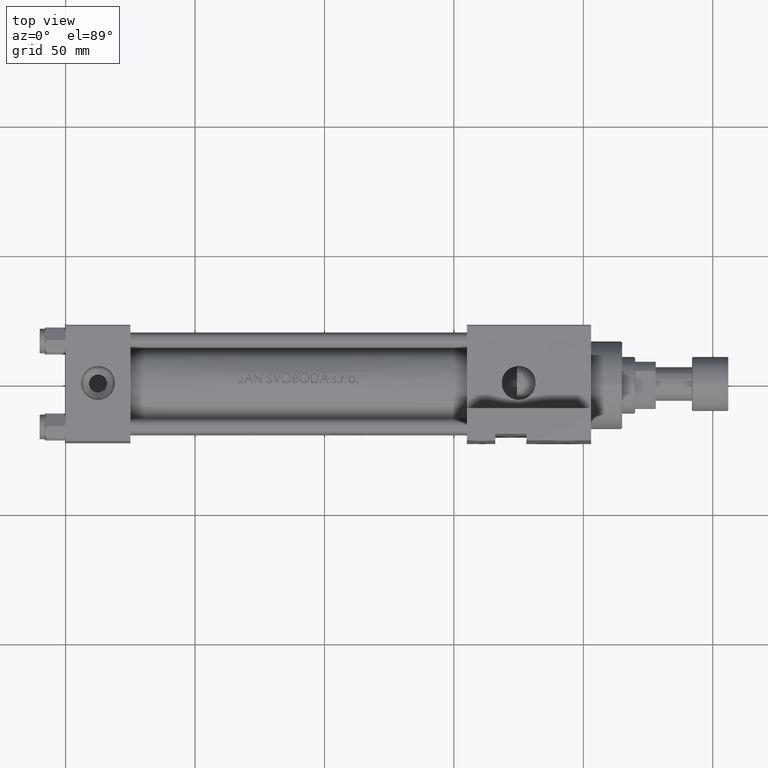
[diagram: clean part render]
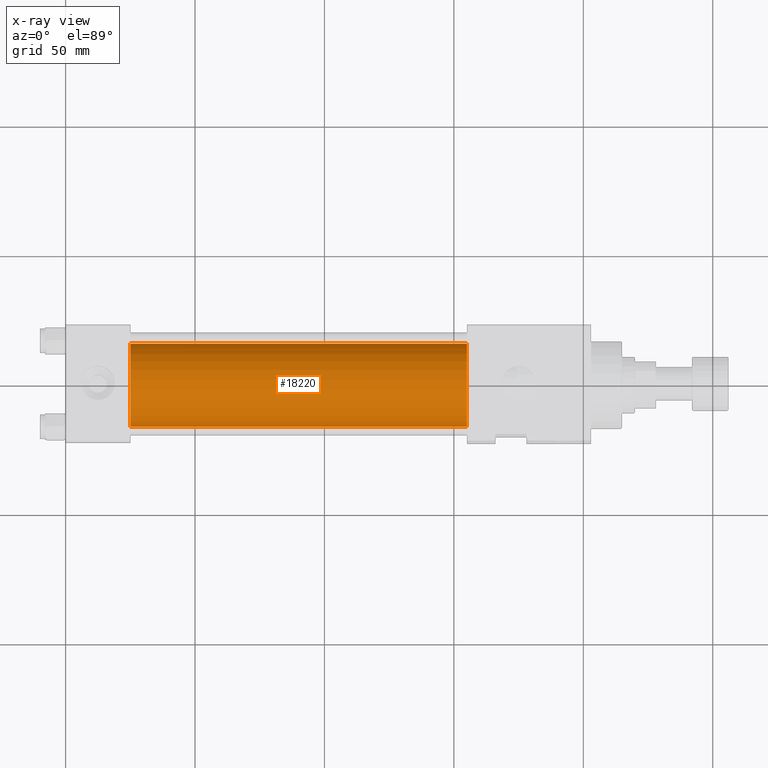
[diagram: x-ray — body ghosted, one internal face saturated and labeled with its STEP entity id]
A machine part, top view, then the same camera in x-ray: the body is ghosted and one INTERNAL B-rep face — a face not visible from any outside direction — is saturated and labeled: STEP entity #18220.
In plain terms, the highlighted cylindrical surface (partial cylindrical patch) has radius 16 mm, axis along (-1, -0, 0).
Its self-contained STEP definition (entity closure, byte-faithful):
#153 = VECTOR ( 'NONE', #14406, 1000.000000000000000 ) ;
#1838 = EDGE_CURVE ( 'NONE', #46500, #14782, #16082, .T. ) ;
#2479 = CARTESIAN_POINT ( 'NONE',  ( 25.00000000000000000, 2.020667218593132311E-15, -16.49999999999999645 ) ) ;
#3766 = LINE ( 'NONE', #18616, #40480 ) ;
#4679 = DIRECTION ( 'NONE',  ( -1.000000000000000000, -0.000000000000000000, -0.000000000000000000 ) ) ;
#5472 = DIRECTION ( 'NONE',  ( 1.000000000000000000, 0.000000000000000000, 0.000000000000000000 ) ) ;
#7986 = ORIENTED_EDGE ( 'NONE', *, *, #1838, .F. ) ;
#9978 = ORIENTED_EDGE ( 'NONE', *, *, #47080, .T. ) ;
#10684 = EDGE_CURVE ( 'NONE', #11125, #46500, #3766, .T. ) ;
#11125 = VERTEX_POINT ( 'NONE', #12494 ) ;
#12494 = CARTESIAN_POINT ( 'NONE',  ( 155.0000000000000000, 6.123233995736727825E-17, 15.50000000000000355 ) ) ;
#13317 = DIRECTION ( 'NONE',  ( 1.000000000000000000, 0.000000000000000000, 0.000000000000000000 ) ) ;
#13767 = CARTESIAN_POINT ( 'NONE',  ( 25.00000000000000000, 6.123233995736727825E-17, -0.4999999999999970024 ) ) ;
#14406 = DIRECTION ( 'NONE',  ( -1.000000000000000000, -0.000000000000000000, -0.000000000000000000 ) ) ;
#14543 = AXIS2_PLACEMENT_3D ( 'NONE', #35469, #13317, #28678 ) ;
#14782 = VERTEX_POINT ( 'NONE', #2479 ) ;
#15627 = EDGE_LOOP ( 'NONE', ( #38892, #9978, #7986, #18105 ) ) ;
#16082 = CIRCLE ( 'NONE', #44215, 16.00000000000000000 ) ;
#16528 = AXIS2_PLACEMENT_3D ( 'NONE', #39176, #4679, #20023 ) ;
#18105 = ORIENTED_EDGE ( 'NONE', *, *, #10684, .F. ) ;
#18220 = ADVANCED_FACE ( 'NONE', ( #39425 ), #35890, .F. ) ;
#18616 = CARTESIAN_POINT ( 'NONE',  ( 155.0000000000000000, 6.123233995736727825E-17, 15.50000000000000355 ) ) ;
#18695 = VERTEX_POINT ( 'NONE', #43320 ) ;
#20023 = DIRECTION ( 'NONE',  ( 0.000000000000000000, 0.000000000000000000, 1.000000000000000000 ) ) ;
#23371 = CIRCLE ( 'NONE', #14543, 16.00000000000000000 ) ;
#26663 = CARTESIAN_POINT ( 'NONE',  ( 25.00000000000000000, 6.123233995736727825E-17, 15.50000000000000355 ) ) ;
#28678 = DIRECTION ( 'NONE',  ( 0.000000000000000000, 0.000000000000000000, -1.000000000000000000 ) ) ;
#34706 = DIRECTION ( 'NONE',  ( -1.000000000000000000, -0.000000000000000000, -0.000000000000000000 ) ) ;
#35469 = CARTESIAN_POINT ( 'NONE',  ( 155.0000000000000000, 6.123233995736727825E-17, -0.4999999999999970024 ) ) ;
#35890 = CYLINDRICAL_SURFACE ( 'NONE', #16528, 16.00000000000000000 ) ;
#38892 = ORIENTED_EDGE ( 'NONE', *, *, #40630, .T. ) ;
#39176 = CARTESIAN_POINT ( 'NONE',  ( 155.0000000000000000, 6.123233995736727825E-17, -0.4999999999999970024 ) ) ;
#39425 = FACE_OUTER_BOUND ( 'NONE', #15627, .T. ) ;
#40480 = VECTOR ( 'NONE', #34706, 1000.000000000000000 ) ;
#40630 = EDGE_CURVE ( 'NONE', #11125, #18695, #23371, .T. ) ;
#43320 = CARTESIAN_POINT ( 'NONE',  ( 155.0000000000000000, 2.020667218593132311E-15, -16.49999999999999645 ) ) ;
#44215 = AXIS2_PLACEMENT_3D ( 'NONE', #13767, #5472, #44461 ) ;
#44461 = DIRECTION ( 'NONE',  ( 0.000000000000000000, 0.000000000000000000, -1.000000000000000000 ) ) ;
#46500 = VERTEX_POINT ( 'NONE', #26663 ) ;
#47080 = EDGE_CURVE ( 'NONE', #18695, #14782, #48631, .T. ) ;
#48379 = CARTESIAN_POINT ( 'NONE',  ( 155.0000000000000000, 2.020667218593132311E-15, -16.49999999999999645 ) ) ;
#48631 = LINE ( 'NONE', #48379, #153 ) ;